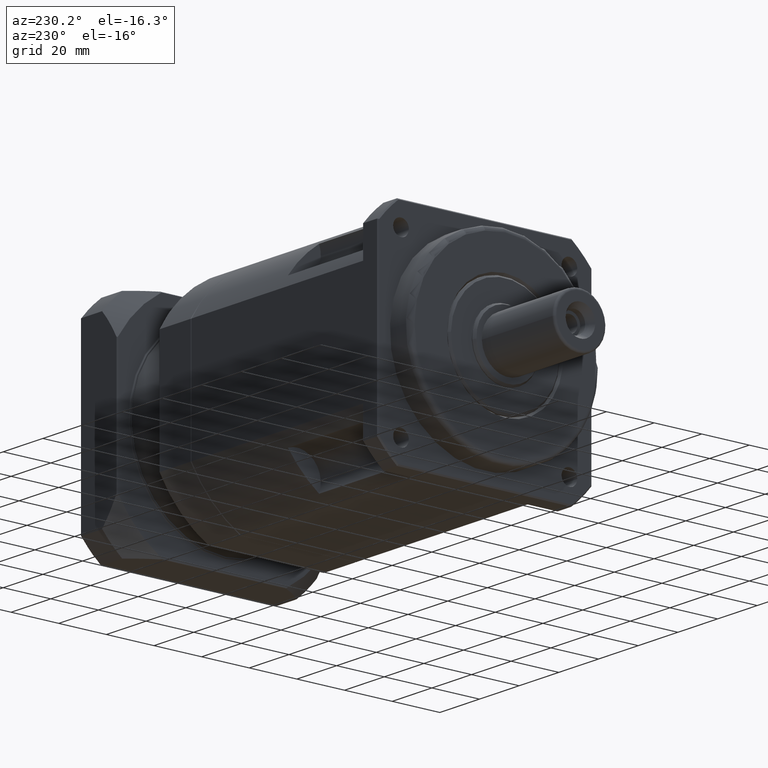
[diagram: clean part render]
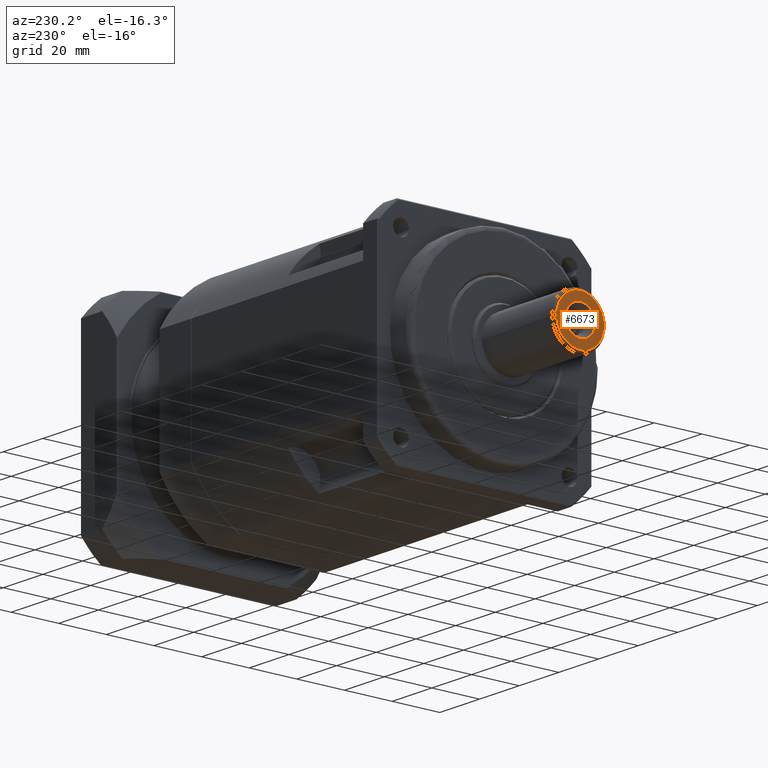
[diagram: same view with one face highlighted and labeled with its STEP entity id]
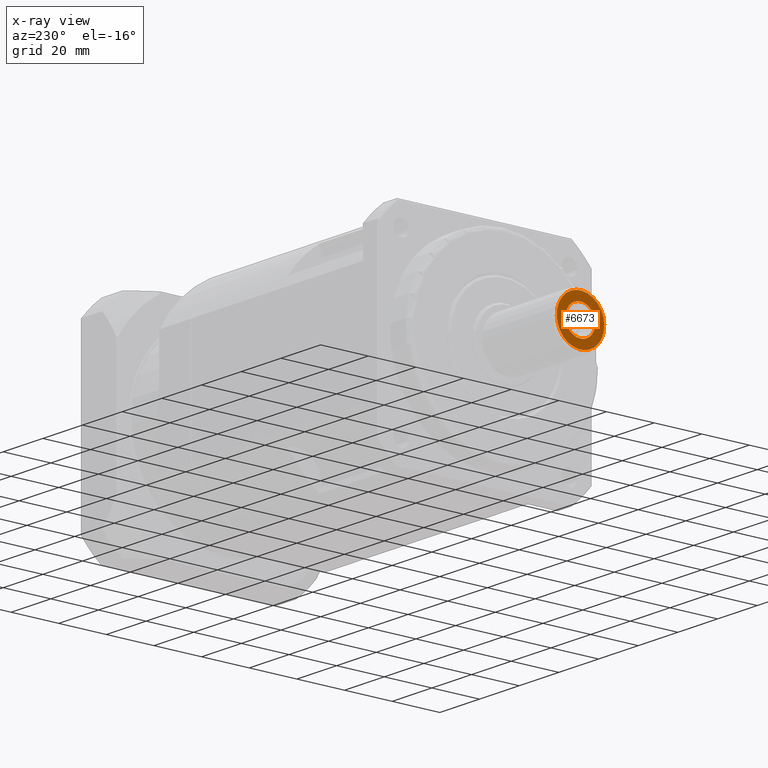
[diagram: x-ray of the same camera — body ghosted, the highlighted face saturated]
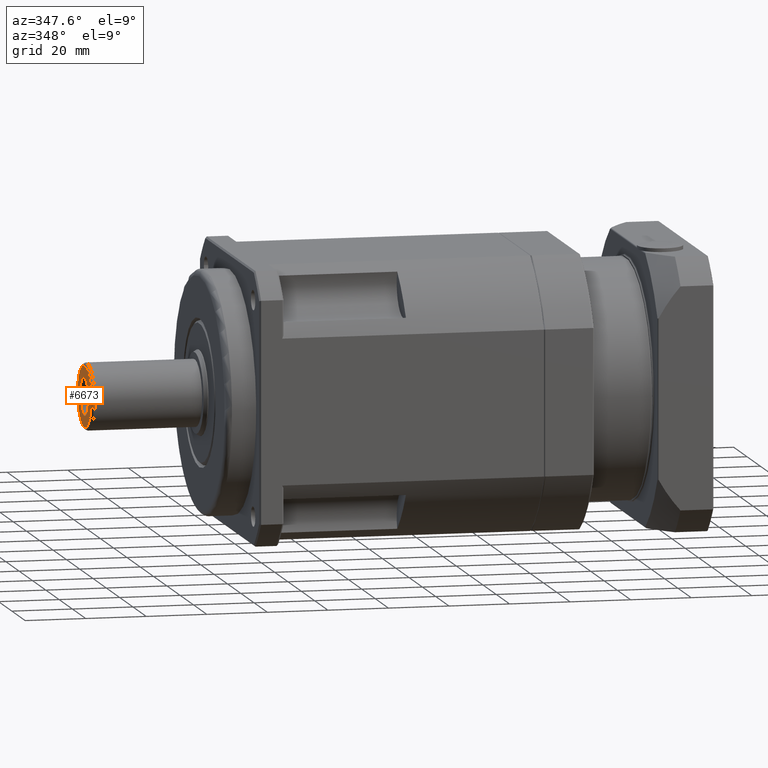
[diagram: same view with one face highlighted and labeled with its STEP entity id]
A machine part, auxiliary view. The second image highlights one B-rep face of the part: STEP entity #6673.
The next image is the same camera in x-ray: the body ghosted, the highlighted face saturated — about 0% of this face is hidden behind the body in this view.
A second angle (auxiliary view) of the same face is appended — the face is thin or edge-on in the first view.
In plain terms, the highlighted planar face has unit normal (-1, -0, 0).
Its self-contained STEP definition (entity closure, byte-faithful):
#1063=PLANE('',#7400);
#1279=FACE_BOUND('',#2229,.T.);
#1645=FACE_OUTER_BOUND('',#2228,.T.);
#2228=EDGE_LOOP('',(#5392));
#2229=EDGE_LOOP('',(#5393));
#2716=CIRCLE('',#7392,6.23205080756888);
#2719=CIRCLE('',#7398,10.);
#3236=VERTEX_POINT('',#11579);
#3239=VERTEX_POINT('',#11588);
#3999=EDGE_CURVE('',#3236,#3236,#2716,.T.);
#4002=EDGE_CURVE('',#3239,#3239,#2719,.T.);
#5392=ORIENTED_EDGE('',*,*,#4002,.F.);
#5393=ORIENTED_EDGE('',*,*,#3999,.T.);
#6673=ADVANCED_FACE('',(#1645,#1279),#1063,.T.);
#7392=AXIS2_PLACEMENT_3D('',#11580,#8958,#8959);
#7398=AXIS2_PLACEMENT_3D('',#11589,#8970,#8971);
#7400=AXIS2_PLACEMENT_3D('',#11592,#8974,#8975);
#8958=DIRECTION('center_axis',(1.,1.84187320090601E-16,-4.77265694971786E-15));
#8959=DIRECTION('ref_axis',(-2.00574607115154E-16,0.999119416204442,-0.041957027579347));
#8970=DIRECTION('center_axis',(1.,1.84187320090601E-16,-4.77265694971786E-15));
#8971=DIRECTION('ref_axis',(3.84271626987257E-16,-0.999119416204442,0.0419570275793472));
#8974=DIRECTION('center_axis',(-1.,-1.84187320090601E-16,4.77265694971786E-15));
#8975=DIRECTION('ref_axis',(4.2632564145606E-15,0.0419570275793472,0.999119416204443));
#11579=CARTESIAN_POINT('',(-108.029710344318,-26.1667646143101,10.5889094272225));
#11580=CARTESIAN_POINT('Origin',(-108.029710344318,-32.3933275789247,10.8503877548315));
#11588=CARTESIAN_POINT('',(-108.029710344318,-22.4021334168803,10.430817479038));
#11589=CARTESIAN_POINT('Origin',(-108.029710344318,-32.3933275789247,10.8503877548315));
#11592=CARTESIAN_POINT('Origin',(-108.029710344318,-21.4030140006759,10.3888604514587));